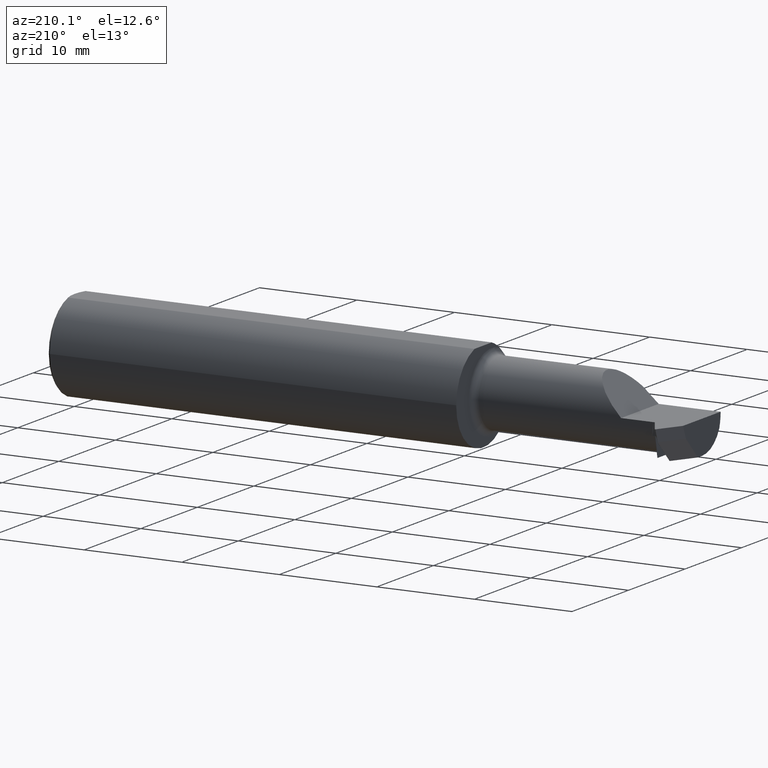
[diagram: clean part render]
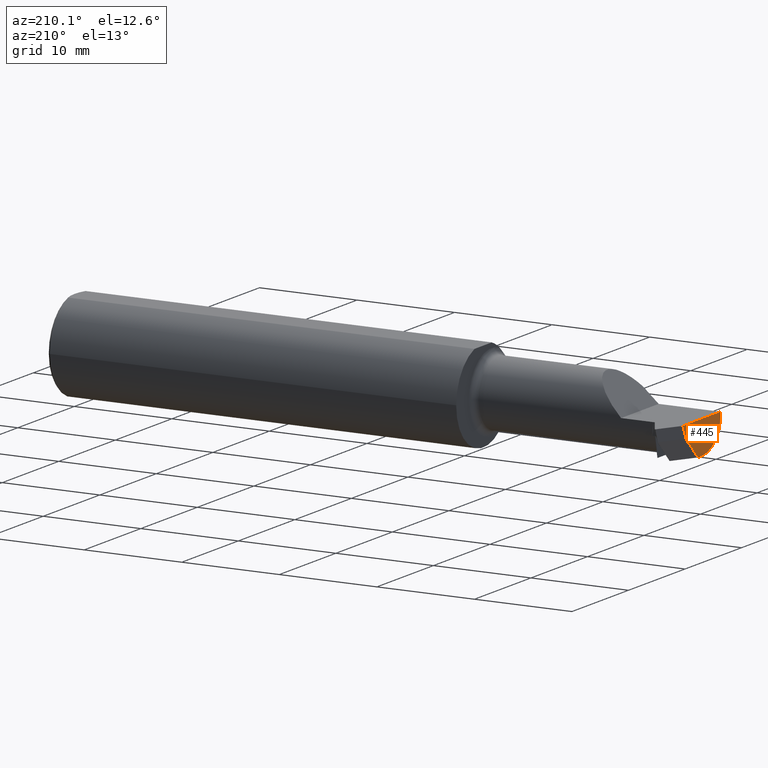
[diagram: same view with one face highlighted and labeled with its STEP entity id]
A machine part, auxiliary view. The second image highlights one B-rep face of the part: STEP entity #445.
In plain terms, the highlighted planar face has unit normal (-1, -0, 0).
Its self-contained STEP definition (entity closure, byte-faithful):
#20 = VERTEX_POINT ( 'NONE', #459 ) ;
#31 = DIRECTION ( 'NONE',  ( -6.842104469694077398E-17, 0.3768974211598647428, 0.9262550048032363037 ) ) ;
#44 = EDGE_CURVE ( 'NONE', #678, #202, #799, .T. ) ;
#64 = CARTESIAN_POINT ( 'NONE',  ( -2.500000000000000000, 0.05417595023755433781, -0.05000000000000003747 ) ) ;
#70 = CIRCLE ( 'NONE', #565, 0.1873499999999999610 ) ;
#73 = CARTESIAN_POINT ( 'NONE',  ( -2.500000000000000000, 0.07452118017992460930, 0.000000000000000000 ) ) ;
#96 = DIRECTION ( 'NONE',  ( 0.000000000000000000, 1.000000000000000000, 0.000000000000000000 ) ) ;
#109 = DIRECTION ( 'NONE',  ( 1.000000000000000000, 1.553500558300393113E-17, -0.000000000000000000 ) ) ;
#118 = DIRECTION ( 'NONE',  ( 0.000000000000000000, 1.000000000000000000, 8.972136187338138840E-17 ) ) ;
#148 = PLANE ( 'NONE',  #436 ) ;
#163 = VERTEX_POINT ( 'NONE', #192 ) ;
#192 = CARTESIAN_POINT ( 'NONE',  ( -2.500000000000000000, -0.1873499999999998777, 0.000000000000000000 ) ) ;
#201 = CARTESIAN_POINT ( 'NONE',  ( -2.500000000000000000, -0.02882404976244724512, -0.1330000000000001181 ) ) ;
#202 = VERTEX_POINT ( 'NONE', #201 ) ;
#212 = LINE ( 'NONE', #631, #837 ) ;
#218 = FACE_OUTER_BOUND ( 'NONE', #800, .T. ) ;
#227 = AXIS2_PLACEMENT_3D ( 'NONE', #389, #109, #856 ) ;
#232 = DIRECTION ( 'NONE',  ( 1.000000000000000000, 1.224646799147352961E-16, -0.000000000000000000 ) ) ;
#235 = DIRECTION ( 'NONE',  ( 1.224646799147352961E-16, -1.000000000000000000, 0.000000000000000000 ) ) ;
#250 = EDGE_CURVE ( 'NONE', #163, #20, #70, .T. ) ;
#261 = EDGE_CURVE ( 'NONE', #750, #344, #212, .T. ) ;
#281 = VECTOR ( 'NONE', #235, 39.37007874015748143 ) ;
#282 = CIRCLE ( 'NONE', #227, 0.1330000000000000071 ) ;
#295 = CARTESIAN_POINT ( 'NONE',  ( -2.500000000000000000, 6.123233995736767268E-17, 0.000000000000000000 ) ) ;
#301 = EDGE_CURVE ( 'NONE', #750, #202, #496, .T. ) ;
#344 = VERTEX_POINT ( 'NONE', #73 ) ;
#357 = CARTESIAN_POINT ( 'NONE',  ( -2.500000000000000000, 0.9912844120552299909, 0.8871084618176600101 ) ) ;
#372 = LINE ( 'NONE', #846, #281 ) ;
#389 = CARTESIAN_POINT ( 'NONE',  ( -2.500000000000000000, -0.05835000000000006154, 0.000000000000000000 ) ) ;
#411 = ORIENTED_EDGE ( 'NONE', *, *, #706, .F. ) ;
#428 = DIRECTION ( 'NONE',  ( 0.000000000000000000, -0.7071067811865534569, -0.7071067811865415775 ) ) ;
#430 = ORIENTED_EDGE ( 'NONE', *, *, #261, .F. ) ;
#436 = AXIS2_PLACEMENT_3D ( 'NONE', #295, #506, #843 ) ;
#443 = ORIENTED_EDGE ( 'NONE', *, *, #250, .F. ) ;
#445 = ADVANCED_FACE ( 'NONE', ( #218 ), #148, .T. ) ;
#457 = CARTESIAN_POINT ( 'NONE',  ( -2.500000000000000000, -0.05835000000000015175, -0.1330000000000000349 ) ) ;
#459 = CARTESIAN_POINT ( 'NONE',  ( -2.500000000000000000, -0.1783697086546693900, -0.05730854678360196297 ) ) ;
#496 = LINE ( 'NONE', #357, #537 ) ;
#506 = DIRECTION ( 'NONE',  ( -1.000000000000000000, -1.224646799147352961E-16, 0.000000000000000000 ) ) ;
#537 = VECTOR ( 'NONE', #428, 39.37007874015748143 ) ;
#548 = EDGE_CURVE ( 'NONE', #344, #163, #372, .T. ) ;
#565 = AXIS2_PLACEMENT_3D ( 'NONE', #842, #232, #96 ) ;
#612 = ORIENTED_EDGE ( 'NONE', *, *, #301, .T. ) ;
#631 = CARTESIAN_POINT ( 'NONE',  ( -2.500000000000000000, 0.06393532237734537993, -0.02601557670413339601 ) ) ;
#639 = CARTESIAN_POINT ( 'NONE',  ( -2.500000000000000000, -0.05835000000000018644, -0.1330000000000000349 ) ) ;
#663 = ORIENTED_EDGE ( 'NONE', *, *, #44, .F. ) ;
#672 = ORIENTED_EDGE ( 'NONE', *, *, #548, .F. ) ;
#678 = VERTEX_POINT ( 'NONE', #457 ) ;
#706 = EDGE_CURVE ( 'NONE', #20, #678, #282, .T. ) ;
#750 = VERTEX_POINT ( 'NONE', #64 ) ;
#778 = VECTOR ( 'NONE', #118, 39.37007874015748143 ) ;
#799 = LINE ( 'NONE', #639, #778 ) ;
#800 = EDGE_LOOP ( 'NONE', ( #430, #612, #663, #411, #443, #672 ) ) ;
#837 = VECTOR ( 'NONE', #31, 39.37007874015748854 ) ;
#842 = CARTESIAN_POINT ( 'NONE',  ( -2.500000000000000000, 6.123233995736767268E-17, 0.000000000000000000 ) ) ;
#843 = DIRECTION ( 'NONE',  ( 1.224646799147352961E-16, -1.000000000000000000, 0.000000000000000000 ) ) ;
#846 = CARTESIAN_POINT ( 'NONE',  ( -2.500000000000000000, 6.123233995736767268E-17, 0.000000000000000000 ) ) ;
#856 = DIRECTION ( 'NONE',  ( 0.000000000000000000, -1.000000000000000000, 0.000000000000000000 ) ) ;